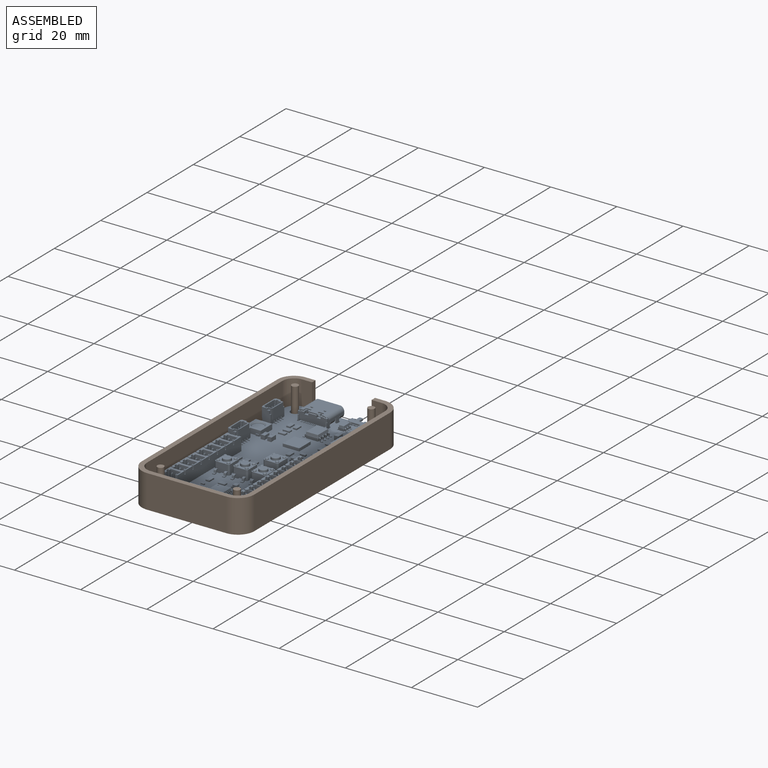
[diagram: assembled view]
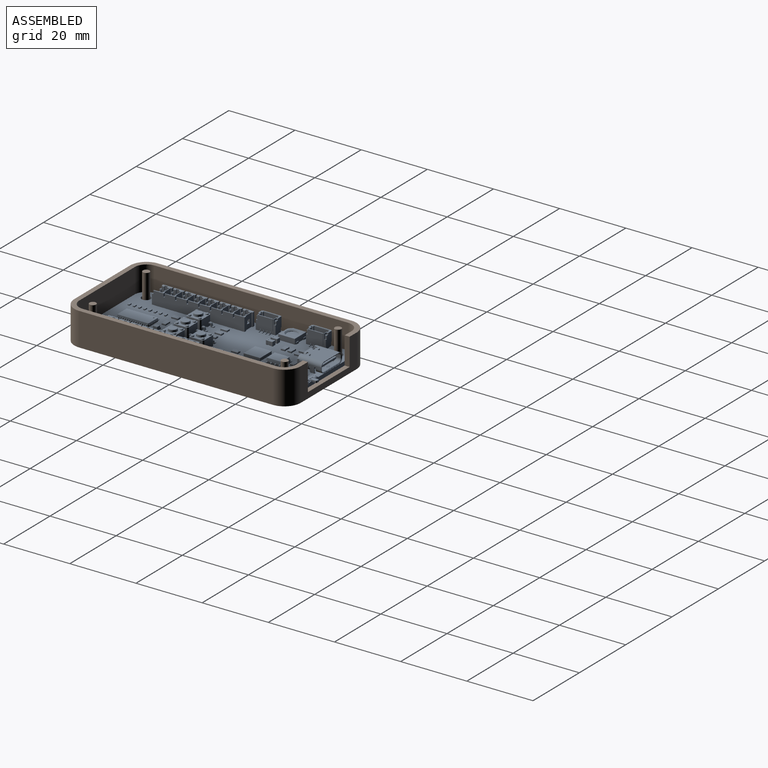
[diagram: assembled view, second angle]
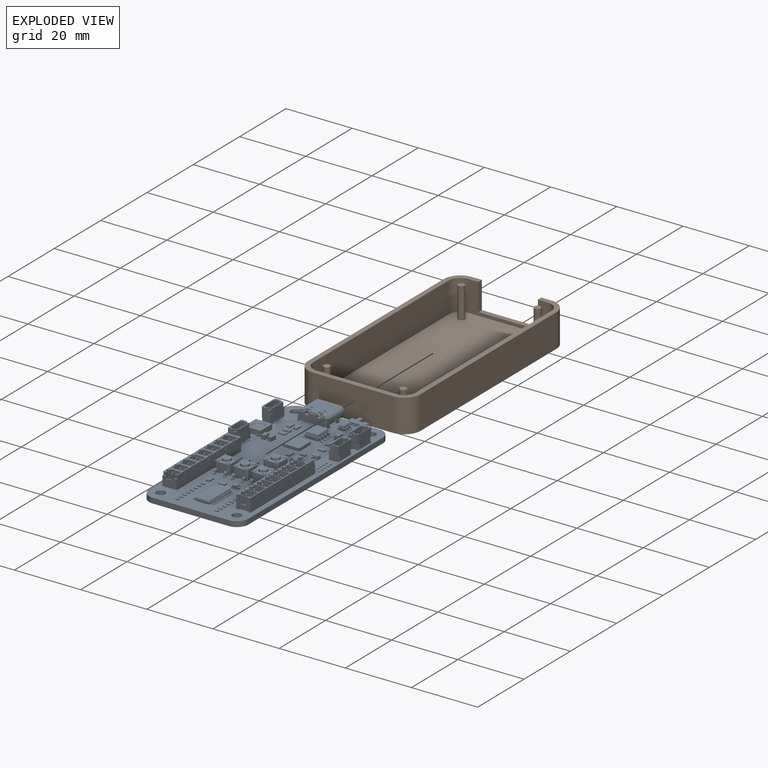
[diagram: exploded view]
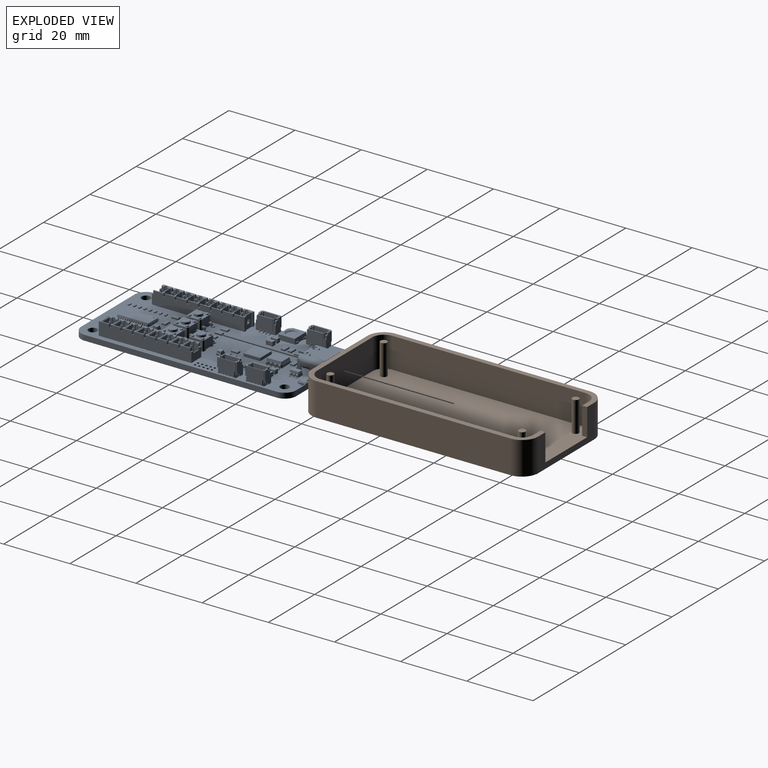
[diagram: exploded view, second angle]
FCSTD DOCUMENT  (FreeCAD 0.20R29177 +426 (Git))
Label: fc_r2
License: All rights reserved
LicenseURL: http://en.wikipedia.org/wiki/All_rights_reserved
objects: Part::Feature×102, App::Link×55, App::Part×17, Sketcher::SketchObject×6, PartDesign::Pad×3, PartDesign::Pocket×2, PartDesign::CoordinateSystem×1, Spreadsheet::Sheet×1, PartDesign::Body×1
note: 120 computed .brp shape members not serialized (recipe doc carries the construction recipe); baked Part::Feature solids carry a one-line shape summary decoded from their .brp

FEATURE [PartDesign::CoordinateSystem] Local_CS_ecaf
  AttacherType = Attacher::AttachEngine3D
  MapMode = 2
  Support = -> [X_Axis001]
FEATURE [Part::Feature] Pcb_ecaf
  shape: bbox 30 x 65 x 1.6 mm, 85 faces (baked)
FEATURE [Sketcher::SketchObject] PCB_Sketch_ecaf
  FullyConstrained = false
  MapMode = 2
  sketch-geometry (9):
    g0: LineSegment StartX=205 StartY=-73.5 StartZ=0 EndX=205 EndY=-131.5 EndZ=0
    g1: LineSegment StartX=178.5 StartY=-135 StartZ=0 EndX=201.5 EndY=-135 EndZ=0
    g2: LineSegment StartX=175 StartY=-73.5 StartZ=0 EndX=175 EndY=-131.5 EndZ=0
    g3: LineSegment StartX=178.5 StartY=-70 StartZ=0 EndX=197 EndY=-70 EndZ=0
    g4: LineSegment StartX=197 StartY=-70 StartZ=0 EndX=201.5 EndY=-70 EndZ=0
    g5: ArcOfCircle CenterX=178.5 CenterY=-131.5 CenterZ=0 NormalX=0 NormalY=0 NormalZ=-1 AngleXU=-1.5708 Radius=3.5 StartAngle=0 EndAngle=1.5708
    g6: ArcOfCircle CenterX=201.5 CenterY=-131.5 CenterZ=0 NormalX=0 NormalY=0 NormalZ=-1 AngleXU=3.14159 Radius=3.5 StartAngle=0 EndAngle=1.5708
    g7: ArcOfCircle CenterX=178.5 CenterY=-73.5 CenterZ=0 NormalX=0 NormalY=0 NormalZ=-1 AngleXU=-2.59331e-07 Radius=3.5 StartAngle=0 EndAngle=1.5708
    g8: ArcOfCircle CenterX=201.5 CenterY=-73.5 CenterZ=0 NormalX=0 NormalY=0 NormalZ=-1 AngleXU=1.5708 Radius=3.5 StartAngle=0 EndAngle=1.5708
  constraints (9):
    c: Coincident(g2,g5)
    c: Coincident(g2,g7)
    c: Coincident(g1,g5)
    c: Coincident(g3,g7)
    c: Coincident(g3,g4)
    c: Coincident(g1,g6)
    c: Coincident(g4,g8)
    c: Coincident(g0,g6)
    c: Coincident(g0,g8)
FEATURE [App::Part] Board_Geoms_ecaf
  Group = -> [Pcb_ecaf,PCB_Sketch_ecaf]
  Origin = -> Origin
FEATURE [Part::Feature] Part__Feature  label="SOLID"
  shape: bbox 4.25 x 5.5 x 5.806 mm, 112 faces (baked)
FEATURE [App::Part] _30480210  label="J15_530480210_eba29879c98""
  Group = -> [Part__Feature]
  Origin = -> Origin008
  Placement = pos=(178.75,-116,3) rot=(1,0,0;1.5708rad)
FEATURE [Part::Feature] Shape  label="BTN3_P:\E-Switch Secure\3D_MODELS_STP_FORMAT\TL3305AFxxxxG.stp_561fbc8f5e7""
  Placement = pos=(195.5,-111.5,0) rot=(0,0,-1;1.5708rad)
  shape: bbox 4.505 x 7.505 x 3.805 mm, 185 faces (baked)
FEATURE [Part::Feature] Shape001  label="AP2112K-3.3V2_SOT_23_5_dac772f8d32""
  Placement = pos=(194.5,-75,0) rot=(0,0,1;3.14159rad)
  shape: bbox 2.8 x 2.9 x 1.55 mm, 109 faces (baked)
FEATURE [Part::Feature] Shape002  label="R31_R_0402_1005Metric_05aedb9767e""
  Placement = pos=(196.225,-123.071,0) rot=(0,0,1;3.14159rad)
  shape: bbox 1 x 0.5 x 0.35 mm, 26 faces (baked)
FEATURE [App::Link] J15_530480210_eba29879c98__ln_  label="J12_530480210_0c2ba19a673""
  LinkPlacement = pos=(178.75,-105.5,3) rot=(1,0,0;1.5708rad)
  LinkedObject = -> _30480210
  Placement = pos=(178.75,-105.5,3) rot=(1,0,0;1.5708rad)
FEATURE [App::Link] J15_530480210_eba29879c98__ln_001  label="J23_530480210_43af08e91fe""
  LinkPlacement = pos=(201.25,-112.5,3) rot=(0,0.707107,0.707107;3.14159rad)
  LinkedObject = -> _30480210
  Placement = pos=(201.25,-112.5,3) rot=(0,0.707107,0.707107;3.14159rad)
FEATURE [Part::Feature] Shape003  label="R3_R_0805_2012Metric_8d72cd1c525""
  Placement = pos=(195,-95.5,0) rot=(0,0,1;0rad)
  shape: bbox 2 x 1.2 x 0.45 mm, 26 faces (baked)
FEATURE [App::Link] R31_R_0402_1005Metric_05aedb9767e__ln_  label="R25_R_0402_1005Metric_978085bccb1""
  LinkPlacement = pos=(196.128,-132.5,0) rot=(0,0,1;3.14159rad)
  LinkedObject = -> Shape002
  Placement = pos=(196.128,-132.5,0) rot=(0,0,1;3.14159rad)
FEATURE [App::Link] R3_R_0805_2012Metric_8d72cd1c525__ln_  label="R17_R_0805_2012Metric_b5a45a613a7""
  LinkPlacement = pos=(183.5,-86,0) rot=(0,0,1;3.14159rad)
  LinkedObject = -> Shape003
  Placement = pos=(183.5,-86,0) rot=(0,0,1;3.14159rad)
FEATURE [App::Link] J15_530480210_eba29879c98__ln_002  label="J14_530480210_c20acc79bf5""
  LinkPlacement = pos=(178.75,-112.5,3) rot=(1,0,0;1.5708rad)
  LinkedObject = -> _30480210
  Placement = pos=(178.75,-112.5,3) rot=(1,0,0;1.5708rad)
FEATURE [App::Link] R31_R_0402_1005Metric_05aedb9767e__ln_001  label="R28_R_0402_1005Metric_2c74dacb2f0""
  LinkPlacement = pos=(196.225,-127.786,0) rot=(0,0,1;3.14159rad)
  LinkedObject = -> Shape002
  Placement = pos=(196.225,-127.786,0) rot=(0,0,1;3.14159rad)
FEATURE [App::Link] R31_R_0402_1005Metric_05aedb9767e__ln_002  label="R9_R_0402_1005Metric_35c67acb1dd""
  LinkPlacement = pos=(184.225,-121.5,0) rot=(0,0,1;0rad)
  LinkedObject = -> Shape002
  Placement = pos=(184.225,-121.5,0) rot=(0,0,1;0rad)
FEATURE [App::Link] J15_530480210_eba29879c98__ln_003  label="J18_530480210_ea0dcacd6fe""
  LinkPlacement = pos=(178.75,-126.5,3) rot=(1,0,0;1.5708rad)
  LinkedObject = -> _30480210
  Placement = pos=(178.75,-126.5,3) rot=(1,0,0;1.5708rad)
FEATURE [App::Link] R31_R_0402_1005Metric_05aedb9767e__ln_003  label="R23_R_0402_1005Metric_96d6f038491""
  LinkPlacement = pos=(184.225,-130.929,0) rot=(0,0,1;0rad)
  LinkedObject = -> Shape002
  Placement = pos=(184.225,-130.929,0) rot=(0,0,1;0rad)
FEATURE [App::Link] R31_R_0402_1005Metric_05aedb9767e__ln_004  label="R20_R_0402_1005Metric_43ccce8d641""
  LinkPlacement = pos=(184.225,-126.214,0) rot=(0,0,1;0rad)
  LinkedObject = -> Shape002
  Placement = pos=(184.225,-126.214,0) rot=(0,0,1;0rad)
FEATURE [App::Link] R3_R_0805_2012Metric_8d72cd1c525__ln_001  label="R1_R_0805_2012Metric_1946942f991""
  LinkPlacement = pos=(182.5,-81.2,0) rot=(0,0,1;1.5708rad)
  LinkedObject = -> Shape003
  Placement = pos=(182.5,-81.2,0) rot=(0,0,1;1.5708rad)
FEATURE [Part::Feature] Shape004  label="C5_C_0805_2012Metric_febcc4c9503""
  Placement = pos=(183.3,-90.5,0) rot=(0,0,1;1.5708rad)
  shape: bbox 1.25 x 2 x 1.25 mm, 28 faces (baked)
FEATURE [App::Link] R31_R_0402_1005Metric_05aedb9767e__ln_005  label="R21_R_0402_1005Metric_75ba3e67f3f""
  LinkPlacement = pos=(184.225,-127.786,0) rot=(0,0,1;0rad)
  LinkedObject = -> Shape002
  Placement = pos=(184.225,-127.786,0) rot=(0,0,1;0rad)
FEATURE [App::Link] J15_530480210_eba29879c98__ln_004  label="J25_530480210_b44d54db2ce""
  LinkPlacement = pos=(201.25,-105.5,3) rot=(0,0.707107,0.707107;3.14159rad)
  LinkedObject = -> _30480210
  Placement = pos=(201.25,-105.5,3) rot=(0,0.707107,0.707107;3.14159rad)
FEATURE [App::Link] R3_R_0805_2012Metric_8d72cd1c525__ln_002  label="R5_R_0805_2012Metric_eb4e9e37ec6""
  LinkPlacement = pos=(196.225,-118.5,0) rot=(0,0,-1;1.5708rad)
  LinkedObject = -> Shape003
  Placement = pos=(196.225,-118.5,0) rot=(0,0,-1;1.5708rad)
FEATURE [Part::Feature] Part__Feature001  label="USB4105GFA_USB4105GFA"
  Placement = pos=(0,0,-1.255) rot=(0,0,1;0rad)
  shape: bbox 0.25 x 0.05 x 2.38 mm, 6 faces (baked)
FEATURE [Part::Feature] Part__Feature002  label="USB4105GFA_USB4105GFA001"
  Placement = pos=(0,0,-1.255) rot=(0,0,1;0rad)
  shape: bbox 0.25 x 0.05 x 2.38 mm, 6 faces (baked)
FEATURE [Part::Feature] Part__Feature003  label="USB4105GFA_USB4105GFA002"
  Placement = pos=(0,0,-1.255) rot=(0,0,1;0rad)
  shape: bbox 0.25 x 0.05 x 1.88 mm, 6 faces (baked)
FEATURE [Part::Feature] Part__Feature004  label="USB4105GFA_USB4105GFA003"
  Placement = pos=(0,0,-1.255) rot=(0,0,1;0rad)
  shape: bbox 0.25 x 0.05 x 1.88 mm, 6 faces (baked)
FEATURE [Part::Feature] Part__Feature005  label="USB4105GFA_USB4105GFA004"
  Placement = pos=(0,0,-1.255) rot=(0,0,1;0rad)
  shape: bbox 0.25 x 0.05 x 1.88 mm, 6 faces (baked)
FEATURE [Part::Feature] Part__Feature006  label="USB4105GFA_USB4105GFA005"
  Placement = pos=(0,0,-1.255) rot=(0,0,1;0rad)
  shape: bbox 0.25 x 0.05 x 1.88 mm, 6 faces (baked)
FEATURE [Part::Feature] Part__Feature007  label="USB4105GFA_USB4105GFA006"
  Placement = pos=(0,0,-1.255) rot=(0,0,1;0rad)
  shape: bbox 0.25 x 0.05 x 1.88 mm, 6 faces (baked)
FEATURE [Part::Feature] Part__Feature008  label="USB4105GFA_USB4105GFA007"
  Placement = pos=(0,0,-1.255) rot=(0,0,1;0rad)
  shape: bbox 0.25 x 0.05 x 1.88 mm, 6 faces (baked)
FEATURE [Part::Feature] Part__Feature009  label="USB4105GFA_USB4105GFA008"
  Placement = pos=(0,0,-1.255) rot=(0,0,1;0rad)
  shape: bbox 0.25 x 0.05 x 1.88 mm, 6 faces (baked)
FEATURE [Part::Feature] Part__Feature010  label="USB4105GFA_USB4105GFA009"
  Placement = pos=(0,0,-1.255) rot=(0,0,1;0rad)
  shape: bbox 0.25 x 0.05 x 1.88 mm, 6 faces (baked)
FEATURE [Part::Feature] Part__Feature011  label="USB4105GFA_USB4105GFA010"
  Placement = pos=(0,0,-1.255) rot=(0,0,1;0rad)
  shape: bbox 0.25 x 0.05 x 2.38 mm, 6 faces (baked)
FEATURE [Part::Feature] Part__Feature012  label="USB4105GFA_USB4105GFA011"
  Placement = pos=(0,0,-1.255) rot=(0,0,1;0rad)
  shape: bbox 0.25 x 0.05 x 2.38 mm, 6 faces (baked)
FEATURE [Part::Feature] Part__Feature013  label="USB4105GFA_USB4105GFA012"
  Placement = pos=(0,0,-1.255) rot=(0,0,1;0rad)
  shape: bbox 0.25 x 0.05 x 2.38 mm, 6 faces (baked)
FEATURE [Part::Feature] Part__Feature014  label="USB4105GFA_USB4105GFA013"
  Placement = pos=(0,0,-1.255) rot=(0,0,1;0rad)
  shape: bbox 0.25 x 0.05 x 1.88 mm, 6 faces (baked)
FEATURE [Part::Feature] Part__Feature015  label="USB4105GFA_USB4105GFA014"
  Placement = pos=(0,0,-1.255) rot=(0,0,1;0rad)
  shape: bbox 0.25 x 0.05 x 1.88 mm, 6 faces (baked)
FEATURE [Part::Feature] Part__Feature016  label="USB4105GFA_USB4105GFA015"
  Placement = pos=(0,0,-1.255) rot=(0,0,1;0rad)
  shape: bbox 0.25 x 0.05 x 2.38 mm, 6 faces (baked)
FEATURE [Part::Feature] Part__Feature017  label="USB4105GFA_USB4105GFA016"
  Placement = pos=(0,0,-1.255) rot=(0,0,1;0rad)
  shape: bbox 0.25 x 0.05 x 1.88 mm, 6 faces (baked)
FEATURE [Part::Feature] Part__Feature018  label="USB4105GFA_USB4105GFA017"
  Placement = pos=(0,0,-1.255) rot=(0,0,1;0rad)
  shape: bbox 0.25 x 0.05 x 1.88 mm, 6 faces (baked)
FEATURE [Part::Feature] Part__Feature019  label="USB4105GFA_USB4105GFA018"
  Placement = pos=(0,0,-1.255) rot=(0,0,1;0rad)
  shape: bbox 0.25 x 0.05 x 1.88 mm, 6 faces (baked)
FEATURE [Part::Feature] Part__Feature020  label="USB4105GFA_USB4105GFA019"
  Placement = pos=(0,0,-1.255) rot=(0,0,1;0rad)
  shape: bbox 0.25 x 0.05 x 1.88 mm, 6 faces (baked)
FEATURE [Part::Feature] Part__Feature021  label="USB4105GFA_USB4105GFA020"
  Placement = pos=(0,0,-1.255) rot=(0,0,1;0rad)
  shape: bbox 0.25 x 0.05 x 2.38 mm, 6 faces (baked)
FEATURE [Part::Feature] Part__Feature022  label="USB4105GFA_USB4105GFA021"
  Placement = pos=(0,0,-1.255) rot=(0,0,1;0rad)
  shape: bbox 0.25 x 0.05 x 1.88 mm, 6 faces (baked)
FEATURE [Part::Feature] Part__Feature023  label="USB4105GFA_USB4105GFA022"
  Placement = pos=(0,0,-1.255) rot=(0,0,1;0rad)
  shape: bbox 0.25 x 0.05 x 1.88 mm, 6 faces (baked)
FEATURE [Part::Feature] Part__Feature024  label="USB4105GFA_USB4105GFA023"
  Placement = pos=(0,0,-1.255) rot=(0,0,1;0rad)
  shape: bbox 0.25 x 0.05 x 2.38 mm, 6 faces (baked)
FEATURE [Part::Feature] Part__Feature025  label="USB4105GFA_USB4105GFA024"
  Placement = pos=(0,0,-1.255) rot=(0,0,1;0rad)
  shape: bbox 0.35 x 0.1 x 1.82 mm, 9 faces (baked)
FEATURE [Part::Feature] Part__Feature026  label="USB4105GFA_USB4105GFA025"
  Placement = pos=(0,0,-1.255) rot=(0,0,1;0rad)
  shape: bbox 0.35 x 0.1 x 1.82 mm, 9 faces (baked)
FEATURE [Part::Feature] Part__Feature027  label="USB4105GFA_USB4105GFA026"
  Placement = pos=(0,0,-1.255) rot=(0,0,1;0rad)
  shape: bbox 0.2 x 0.32 x 0.725 mm, 10 faces (baked)
FEATURE [Part::Feature] Part__Feature028  label="USB4105GFA_USB4105GFA027"
  Placement = pos=(0,0,-1.255) rot=(0,0,1;0rad)
  shape: bbox 0.2 x 0.32 x 0.725 mm, 10 faces (baked)
FEATURE [Part::Feature] Part__Feature029  label="USB4105GFA_USB4105GFA028"
  Placement = pos=(0,0,-1.255) rot=(0,0,1;0rad)
  shape: bbox 0.2 x 0.32 x 0.725 mm, 10 faces (baked)
FEATURE [Part::Feature] Part__Feature030  label="USB4105GFA_USB4105GFA029"
  Placement = pos=(0,0,-1.255) rot=(0,0,1;0rad)
  shape: bbox 0.2 x 0.32 x 0.725 mm, 10 faces (baked)
FEATURE [Part::Feature] Part__Feature031  label="USB4105GFA_USB4105GFA030"
  Placement = pos=(0,0,-1.255) rot=(0,0,1;0rad)
  shape: bbox 0.2 x 0.32 x 0.725 mm, 10 faces (baked)
FEATURE [Part::Feature] Part__Feature032  label="USB4105GFA_USB4105GFA031"
  Placement = pos=(0,0,-1.255) rot=(0,0,1;0rad)
  shape: bbox 0.2 x 0.32 x 0.725 mm, 10 faces (baked)
FEATURE [Part::Feature] Part__Feature033  label="USB4105GFA_USB4105GFA032"
  Placement = pos=(0,0,-1.255) rot=(0,0,1;0rad)
  shape: bbox 0.2 x 0.32 x 0.725 mm, 10 faces (baked)
FEATURE [Part::Feature] Part__Feature034  label="USB4105GFA_USB4105GFA033"
  Placement = pos=(0,0,-1.255) rot=(0,0,1;0rad)
  shape: bbox 0.2 x 0.32 x 0.725 mm, 10 faces (baked)
FEATURE [Part::Feature] Part__Feature035  label="USB4105GFA_USB4105GFA034"
  Placement = pos=(0,0,-1.255) rot=(0,0,1;0rad)
  shape: bbox 0.2 x 0.32 x 0.725 mm, 10 faces (baked)
FEATURE [Part::Feature] Part__Feature036  label="USB4105GFA_USB4105GFA035"
  Placement = pos=(0,0,-1.255) rot=(0,0,1;0rad)
  shape: bbox 0.2 x 0.32 x 0.725 mm, 10 faces (baked)
FEATURE [Part::Feature] Part__Feature037  label="USB4105GFA_USB4105GFA036"
  Placement = pos=(0,0,-1.255) rot=(0,0,1;0rad)
  shape: bbox 0.2 x 0.32 x 0.725 mm, 10 faces (baked)
FEATURE [Part::Feature] Part__Feature038  label="USB4105GFA_USB4105GFA037"
  Placement = pos=(0,0,-1.255) rot=(0,0,1;0rad)
  shape: bbox 0.2 x 0.32 x 0.725 mm, 10 faces (baked)
FEATURE [Part::Feature] Part__Feature039  label="USB4105GFA_USB4105GFA038"
  Placement = pos=(0,0,-1.255) rot=(0,0,1;0rad)
  shape: bbox 0.2 x 0.32 x 0.725 mm, 10 faces (baked)
FEATURE [Part::Feature] Part__Feature040  label="USB4105GFA_USB4105GFA039"
  Placement = pos=(0,0,-1.255) rot=(0,0,1;0rad)
  shape: bbox 0.2 x 0.32 x 0.725 mm, 10 faces (baked)
FEATURE [Part::Feature] Part__Feature041  label="USB4105GFA_USB4105GFA040"
  Placement = pos=(0,0,-1.255) rot=(0,0,1;0rad)
  shape: bbox 0.2 x 0.32 x 0.725 mm, 10 faces (baked)
FEATURE [Part::Feature] Part__Feature042  label="USB4105GFA_USB4105GFA041"
  Placement = pos=(0,0,-1.255) rot=(0,0,1;0rad)
  shape: bbox 0.2 x 0.32 x 0.725 mm, 10 faces (baked)
FEATURE [Part::Feature] Part__Feature043  label="USB4105GFA_USB4105GFA042"
  Placement = pos=(0,0,-1.255) rot=(0,0,1;0rad)
  shape: bbox 8.94 x 4.41 x 7.33 mm, 421 faces (baked)
FEATURE [Part::Feature] Part__Feature044  label="USB4105GFA_USB4105GFA043"
  Placement = pos=(0,0,-1.255) rot=(0,0,1;0rad)
  shape: bbox 8.89 x 3.61 x 6.57 mm, 162 faces (baked)
FEATURE [App::Part] USB4105GFA_USB4105GFA  label="USB4105GFA_USB4105GFA044"
  Group = -> [Part__Feature001,Part__Feature002,Part__Feature003,Part__Feature004,Part__Feature005,Part__Feature006,Part__Feature007,Part__Feature008,Part__Feature009,Part__Feature010,Part__Feature011,Part__Feature012,Part__Feature013,Part__Feature014,Part__Feature015,Part__Feature016,Part__Feature017,Part__Feature018,Part__Feature019,Part__Feature020,Part__Feature021,Part__Feature022,Part__Feature023,+21 more]
  Origin = -> Origin009
FEATURE [App::Part] USB4105GFA  label="J1_USB4105GFA_8c9771e9b48""
  Group = -> [USB4105GFA_USB4105GFA]
  Origin = -> Origin010
  Placement = pos=(186.355,-72.5,0) rot=(0,0.707107,0.707107;3.14159rad)
FEATURE [App::Link] J15_530480210_eba29879c98__ln_005  label="J26_530480210_0dc223683e1""
  LinkPlacement = pos=(201.25,-102,3) rot=(0,0.707107,0.707107;3.14159rad)
  LinkedObject = -> _30480210
  Placement = pos=(201.25,-102,3) rot=(0,0.707107,0.707107;3.14159rad)
FEATURE [App::Link] R3_R_0805_2012Metric_8d72cd1c525__ln_003  label="R2_R_0805_2012Metric_a13dcf4894d""
  LinkPlacement = pos=(184.225,-118.5,0) rot=(0,0,-1;1.5708rad)
  LinkedObject = -> Shape003
  Placement = pos=(184.225,-118.5,0) rot=(0,0,-1;1.5708rad)
FEATURE [App::Link] R3_R_0805_2012Metric_8d72cd1c525__ln_004  label="R11_R_0805_2012Metric_68373026d7d""
  LinkPlacement = pos=(185.5,-104.5,0) rot=(0,0,1;1.5708rad)
  LinkedObject = -> Shape003
  Placement = pos=(185.5,-104.5,0) rot=(0,0,1;1.5708rad)
FEATURE [App::Link] R31_R_0402_1005Metric_05aedb9767e__ln_006  label="R32_R_0402_1005Metric_2e0dea6faa5""
  LinkPlacement = pos=(196.225,-121.5,0) rot=(0,0,1;3.14159rad)
  LinkedObject = -> Shape002
  Placement = pos=(196.225,-121.5,0) rot=(0,0,1;3.14159rad)
FEATURE [App::Link] J15_530480210_eba29879c98__ln_006  label="J16_530480210_f79377288be""
  LinkPlacement = pos=(178.75,-119.5,3) rot=(1,0,0;1.5708rad)
  LinkedObject = -> _30480210
  Placement = pos=(178.75,-119.5,3) rot=(1,0,0;1.5708rad)
FEATURE [App::Link] BTN3_P__E_Switch_Secure_3D_MODELS_STP_FORMAT_TL3305AFxxxxG_stp_561fbc8f5e7__ln_  label="BTN2_P:\E-Switch Secure\3D_MODELS_STP_FORMAT\TL3305AFxxxxG.stp_e0b9e0507f5""
  LinkPlacement = pos=(190,-111.5,0) rot=(0,0,-1;1.5708rad)
  LinkedObject = -> Shape
  Placement = pos=(190,-111.5,0) rot=(0,0,-1;1.5708rad)
FEATURE [Part::Feature] Part__Feature045  label="APHB1608LZGKSURKC_APHB1608LZGKSURKC"
  Placement = pos=(0,0,0) rot=(0,1,0;1.5708rad)
  shape: bbox 0.4 x 0.15 x 0.3 mm, 7 faces (baked)
FEATURE [Part::Feature] Part__Feature046  label="APHB1608LZGKSURKC_APHB1608LZGKSURKC001"
  Placement = pos=(0,0,0) rot=(0,1,0;1.5708rad)
  shape: bbox 0.4 x 0.15 x 0.3 mm, 7 faces (baked)
FEATURE [Part::Feature] Part__Feature047  label="APHB1608LZGKSURKC_APHB1608LZGKSURKC002"
  Placement = pos=(0,0,0) rot=(0,1,0;1.5708rad)
  shape: bbox 0.4 x 0.15 x 0.3 mm, 7 faces (baked)
FEATURE [Part::Feature] Part__Feature048  label="APHB1608LZGKSURKC_APHB1608LZGKSURKC003"
  Placement = pos=(0,0,0) rot=(0,1,0;1.5708rad)
  shape: bbox 0.4 x 0.15 x 0.3 mm, 7 faces (baked)
FEATURE [Part::Feature] Part__Feature049  label="APHB1608LZGKSURKC_APHB1608LZGKSURKC004"
  Placement = pos=(0,0,0) rot=(0,1,0;1.5708rad)
  shape: bbox 0.15 x 0.15 x 0.15 mm, 5 faces (baked)
FEATURE [Part::Feature] Part__Feature050  label="APHB1608LZGKSURKC_APHB1608LZGKSURKC005"
  Placement = pos=(0,0,0) rot=(0,1,0;1.5708rad)
  shape: bbox 0.15 x 0.15 x 0.15 mm, 5 faces (baked)
FEATURE [Part::Feature] Part__Feature051  label="APHB1608LZGKSURKC_APHB1608LZGKSURKC006"
  Placement = pos=(0,0,0) rot=(0,1,0;1.5708rad)
  shape: bbox 0.15 x 0.15 x 0.15 mm, 5 faces (baked)
FEATURE [Part::Feature] Part__Feature052  label="APHB1608LZGKSURKC_APHB1608LZGKSURKC007"
  Placement = pos=(0,0,0) rot=(0,1,0;1.5708rad)
  shape: bbox 0.15 x 0.15 x 0.15 mm, 5 faces (baked)
FEATURE [Part::Feature] Part__Feature053  label="APHB1608LZGKSURKC_APHB1608LZGKSURKC008"
  Placement = pos=(0,0,0) rot=(0,1,0;1.5708rad)
  shape: bbox 1.6 x 0.35 x 0.8 mm, 6 faces (baked)
FEATURE [Part::Feature] Part__Feature054  label="APHB1608LZGKSURKC_APHB1608LZGKSURKC009"
  Placement = pos=(0,0,0) rot=(0,1,0;1.5708rad)
  shape: bbox 1.6 x 0.15 x 0.8 mm, 23 faces (baked)
FEATURE [Part::Feature] Part__Feature055  label="APHB1608LZGKSURKC_APHB1608LZGKSURKC010"
  Placement = pos=(0,0,0) rot=(0,1,0;1.5708rad)
  shape: bbox 0.4 x 0.1 x 0.796 mm, 10 faces (baked)
FEATURE [App::Part] APHB1608LZGKSURKC_APHB1608LZGKSURKC  label="APHB1608LZGKSURKC_APHB1608LZGKSURKC011"
  Group = -> [Part__Feature045,Part__Feature046,Part__Feature047,Part__Feature048,Part__Feature049,Part__Feature050,Part__Feature051,Part__Feature052,Part__Feature053,Part__Feature054,Part__Feature055]
  Origin = -> Origin011
FEATURE [App::Part] APHB1608LZGKSURKC  label="D6_APHB1608LZGKSURKC_2d79be0c02d""
  Group = -> [APHB1608LZGKSURKC_APHB1608LZGKSURKC]
  Origin = -> Origin012
  Placement = pos=(194.975,-93.5,0) rot=(1,0,0;1.5708rad)
FEATURE [App::Link] C5_C_0805_2012Metric_febcc4c9503__ln_  label="C6_C_0805_2012Metric_464f59ece5b""
  LinkPlacement = pos=(181.3,-90.5,0) rot=(0,0,-1;1.5708rad)
  LinkedObject = -> Shape004
  Placement = pos=(181.3,-90.5,0) rot=(0,0,-1;1.5708rad)
FEATURE [App::Link] R31_R_0402_1005Metric_05aedb9767e__ln_007  label="R29_R_0402_1005Metric_32d439146da""
  LinkPlacement = pos=(196.225,-126.214,0) rot=(0,0,1;3.14159rad)
  LinkedObject = -> Shape002
  Placement = pos=(196.225,-126.214,0) rot=(0,0,1;3.14159rad)
FEATURE [App::Link] R3_R_0805_2012Metric_8d72cd1c525__ln_005  label="R15_R_0805_2012Metric_2045c3087e7""
  LinkPlacement = pos=(184.5,-81.2,0) rot=(0,0,-1;1.5708rad)
  LinkedObject = -> Shape003
  Placement = pos=(184.5,-81.2,0) rot=(0,0,-1;1.5708rad)
FEATURE [Part::Feature] Shape005  label="U3_QFN_32_1EP_5x5mm_P05mm_EP33x33mm_5e3dba8b24a""
  Placement = pos=(190.25,-89.5625,0) rot=(0,0,1;1.5708rad)
  shape: bbox 5 x 5 x 0.875 mm, 206 faces (baked)
FEATURE [App::Link] R31_R_0402_1005Metric_05aedb9767e__ln_008  label="R27_R_0402_1005Metric_b2657f9fb6a""
  LinkPlacement = pos=(196.225,-129.357,0) rot=(0,0,1;3.14159rad)
  LinkedObject = -> Shape002
  Placement = pos=(196.225,-129.357,0) rot=(0,0,1;3.14159rad)
FEATURE [App::Link] R3_R_0805_2012Metric_8d72cd1c525__ln_006  label="R19_R_0805_2012Metric_b859e94313a""
  LinkPlacement = pos=(196.5,-84.5,0) rot=(0,0,1;1.5708rad)
  LinkedObject = -> Shape003
  Placement = pos=(196.5,-84.5,0) rot=(0,0,1;1.5708rad)
FEATURE [App::Link] R31_R_0402_1005Metric_05aedb9767e__ln_009  label="R26_R_0402_1005Metric_d4dea5bbcb8""
  LinkPlacement = pos=(196.128,-130.929,0) rot=(0,0,1;3.14159rad)
  LinkedObject = -> Shape002
  Placement = pos=(196.128,-130.929,0) rot=(0,0,1;3.14159rad)
FEATURE [Part::Feature] Part__Feature056  label="4328"
  shape: bbox 0.15 x 2.2 x 0.3 mm, 10 faces (baked)
FEATURE [Part::Feature] Part__Feature057  label="4328001"
  shape: bbox 0.15 x 0.7 x 3.6 mm, 12 faces (baked)
FEATURE [Part::Feature] Part__Feature058  label="4328002"
  shape: bbox 0.15 x 2.2 x 0.3 mm, 10 faces (baked)
FEATURE [Part::Feature] Part__Feature059  label="4328003"
  shape: bbox 6 x 4.25 x 2.9 mm, 125 faces (baked)
FEATURE [Part::Feature] Part__Feature060  label="4328004"
  shape: bbox 0.15 x 0.1 x 0.3 mm, 6 faces (baked)
FEATURE [Part::Feature] Part__Feature061  label="4328005"
  shape: bbox 0.15 x 0.7 x 3.6 mm, 12 faces (baked)
FEATURE [Part::Feature] Part__Feature062  label="4328006"
  shape: bbox 0.2 x 1.3 x 1.5 mm, 23 faces (baked)
FEATURE [Part::Feature] Part__Feature063  label="4328007"
  shape: bbox 0.15 x 2.2 x 0.3 mm, 10 faces (baked)
FEATURE [Part::Feature] Part__Feature064  label="4328008"
  shape: bbox 0.15 x 0.1 x 0.3 mm, 6 faces (baked)
FEATURE [Part::Feature] Part__Feature065  label="4328009"
  shape: bbox 0.15 x 0.1 x 0.3 mm, 6 faces (baked)
FEATURE [Part::Feature] Part__Feature066  label="4328010"
  shape: bbox 0.15 x 0.7 x 3.6 mm, 12 faces (baked)
FEATURE [Part::Feature] Part__Feature067  label="4328011"
  shape: bbox 0.15 x 0.1 x 0.3 mm, 6 faces (baked)
FEATURE [Part::Feature] Part__Feature068  label="4328012"
  shape: bbox 0.15 x 0.7 x 3.6 mm, 12 faces (baked)
FEATURE [Part::Feature] Part__Feature069  label="4328013"
  shape: bbox 0.2 x 1.3 x 1.5 mm, 23 faces (baked)
FEATURE [Part::Feature] Part__Feature070  label="4328014"
  shape: bbox 0.15 x 2.2 x 0.3 mm, 10 faces (baked)
FEATURE [App::Part] _328  label="J3_4328015_ddb25768c42""
  Group = -> [Part__Feature056,Part__Feature057,Part__Feature058,Part__Feature059,Part__Feature060,Part__Feature061,Part__Feature062,Part__Feature063,Part__Feature064,Part__Feature065,Part__Feature066,Part__Feature067,Part__Feature068,Part__Feature069,Part__Feature070]
  Origin = -> Origin013
  Placement = pos=(203,-89,0) rot=(0.57735,-0.57735,-0.57735;2.0944rad)
FEATURE [Part::Feature] Part__Feature071  label="729b0bae-9266-11ed-9e62-a0cec80452fd_part"
  shape: bbox 3.9 x 4.905 x 1.75 mm, 84 faces (baked)
FEATURE [App::Part] _29b0bae_9266_11ed_9e62_a0cec80452fd  label="729b0bae-9266-11ed-9e62-a0cec80452fd"
  Group = -> [Part__Feature071]
  Origin = -> Origin014
FEATURE [Part::Feature] Part__Feature072  label="729b0e92-9266-11ed-9e62-a0cec80452fd_part"
  shape: bbox 1.198 x 0.41 x 1.07 mm, 14 faces (baked)
FEATURE [Part::Feature] Part__Feature073  label="729b0e92-9266-11ed-9e62-a0cec80452fd_part001"
  shape: bbox 1.198 x 0.41 x 1.07 mm, 14 faces (baked)
FEATURE [Part::Feature] Part__Feature074  label="729b0e92-9266-11ed-9e62-a0cec80452fd_part002"
  shape: bbox 1.198 x 0.41 x 1.07 mm, 14 faces (baked)
FEATURE [Part::Feature] Part__Feature075  label="729b0e92-9266-11ed-9e62-a0cec80452fd_part003"
  shape: bbox 1.198 x 0.41 x 1.07 mm, 14 faces (baked)
FEATURE [Part::Feature] Part__Feature076  label="729b0e92-9266-11ed-9e62-a0cec80452fd_part004"
  shape: bbox 1.198 x 0.41 x 1.07 mm, 14 faces (baked)
FEATURE [Part::Feature] Part__Feature077  label="729b0e92-9266-11ed-9e62-a0cec80452fd_part005"
  shape: bbox 1.198 x 0.41 x 1.07 mm, 14 faces (baked)
FEATURE [Part::Feature] Part__Feature078  label="729b0e92-9266-11ed-9e62-a0cec80452fd_part006"
  shape: bbox 1.198 x 0.41 x 1.07 mm, 14 faces (baked)
FEATURE [Part::Feature] Part__Feature079  label="729b0e92-9266-11ed-9e62-a0cec80452fd_part007"
  shape: bbox 1.198 x 0.41 x 1.07 mm, 14 faces (baked)
FEATURE [App::Part] _29b0e92_9266_11ed_9e62_a0cec80452fd_part  label="729b0e92-9266-11ed-9e62-a0cec80452fd_part008"
  Group = -> [Part__Feature072,Part__Feature073,Part__Feature074,Part__Feature075,Part__Feature076,Part__Feature077,Part__Feature078,Part__Feature079]
  Origin = -> Origin015
FEATURE [App::Part] _29b0e92_9266_11ed_9e62_a0cec80452fd  label="729b0e92-9266-11ed-9e62-a0cec80452fd"
  Group = -> [_29b0e92_9266_11ed_9e62_a0cec80452fd_part]
  Origin = -> Origin016
FEATURE [Part::Feature] Part__Feature080  label="729b1108-9266-11ed-9e62-a0cec80452fd_part"
  shape: bbox 0.4 x 0.4 x 0.05 mm, 3 faces (baked)
FEATURE [App::Part] _29b1108_9266_11ed_9e62_a0cec80452fd  label="729b1108-9266-11ed-9e62-a0cec80452fd"
  Group = -> [Part__Feature080]
  Origin = -> Origin017
FEATURE [App::Part] _29b06ae_9266_11ed_9e62_a0cec80452fd  label="729b06ae-9266-11ed-9e62-a0cec80452fd"
  Group = -> [_29b0bae_9266_11ed_9e62_a0cec80452fd,_29b0e92_9266_11ed_9e62_a0cec80452fd,_29b1108_9266_11ed_9e62_a0cec80452fd]
  Origin = -> Origin018
FEATURE [App::Part] CQ_assembly  label="U5_CQ assembly_c1ff1356c96""
  Group = -> [_29b06ae_9266_11ed_9e62_a0cec80452fd]
  Origin = -> Origin019
  Placement = pos=(191.5,-82.5,0) rot=(0,0,1;3.14159rad)
FEATURE [App::Link] J15_530480210_eba29879c98__ln_007  label="J20_530480210_a2b915e6096""
  LinkPlacement = pos=(201.25,-123,3) rot=(0,0.707107,0.707107;3.14159rad)
  LinkedObject = -> _30480210
  Placement = pos=(201.25,-123,3) rot=(0,0.707107,0.707107;3.14159rad)
FEATURE [App::Link] J3_4328015_ddb25768c42__ln_  label="J10_4328015_7ff0f795162""
  LinkPlacement = pos=(176.725,-80.5,0) rot=(0.57735,0.57735,0.57735;2.0944rad)
  LinkedObject = -> _328
  Placement = pos=(176.725,-80.5,0) rot=(0.57735,0.57735,0.57735;2.0944rad)
FEATURE [App::Link] C5_C_0805_2012Metric_febcc4c9503__ln_001  label="C3_C_0805_2012Metric_948c026d24f""
  LinkPlacement = pos=(198.5,-80.5,0) rot=(0,0,-1;1.5708rad)
  LinkedObject = -> Shape004
  Placement = pos=(198.5,-80.5,0) rot=(0,0,-1;1.5708rad)
FEATURE [App::Link] J3_4328015_ddb25768c42__ln_001  label="J2_4328015_5f22bbe0af1""
  LinkPlacement = pos=(203,-80.5,0) rot=(0.57735,-0.57735,-0.57735;2.0944rad)
  LinkedObject = -> _328
  Placement = pos=(203,-80.5,0) rot=(0.57735,-0.57735,-0.57735;2.0944rad)
FEATURE [App::Link] R31_R_0402_1005Metric_05aedb9767e__ln_010  label="R10_R_0402_1005Metric_4869f4c0b29""
  LinkPlacement = pos=(184.225,-123.071,0) rot=(0,0,1;0rad)
  LinkedObject = -> Shape002
  Placement = pos=(184.225,-123.071,0) rot=(0,0,1;0rad)
FEATURE [App::Link] R3_R_0805_2012Metric_8d72cd1c525__ln_007  label="R13_R_0805_2012Metric_0160fac3375""
  LinkPlacement = pos=(183.5,-84,0) rot=(0,0,1;3.14159rad)
  LinkedObject = -> Shape003
  Placement = pos=(183.5,-84,0) rot=(0,0,1;3.14159rad)
FEATURE [App::Link] R3_R_0805_2012Metric_8d72cd1c525__ln_008  label="R16_R_0805_2012Metric_9f33b905af8""
  LinkPlacement = pos=(197.2,-88.5,0) rot=(0,0,1;3.14159rad)
  LinkedObject = -> Shape003
  Placement = pos=(197.2,-88.5,0) rot=(0,0,1;3.14159rad)
FEATURE [App::Link] J15_530480210_eba29879c98__ln_008  label="J13_530480210_56933f0e703""
  LinkPlacement = pos=(178.75,-109,3) rot=(1,0,0;1.5708rad)
  LinkedObject = -> _30480210
  Placement = pos=(178.75,-109,3) rot=(1,0,0;1.5708rad)
FEATURE [Part::Feature] Shape006  label="U2_TSSOP_28_44x97mm_P065mm_7504b019951""
  Placement = pos=(190.363,-125.775,0) rot=(0,0,1;0rad)
  shape: bbox 6.4 x 9.7 x 1.1 mm, 456 faces (baked)
FEATURE [Part::Feature] Shape007  label="D2_LED_0805_2012Metric_617619232d8""
  Placement = pos=(192.27,-118.725,0) rot=(0,0,1;0rad)
  shape: bbox 2 x 1.25 x 1.1 mm, 50 faces (baked)
FEATURE [App::Link] BTN3_P__E_Switch_Secure_3D_MODELS_STP_FORMAT_TL3305AFxxxxG_stp_561fbc8f5e7__ln_001  label="RESET_P:\E-Switch Secure\3D_MODELS_STP_FORMAT\TL3305AFxxxxG.stp_b94cc1d66f6""
  LinkPlacement = pos=(193.975,-104,0) rot=(0,0,1;3.14159rad)
  LinkedObject = -> Shape
  Placement = pos=(193.975,-104,0) rot=(0,0,1;3.14159rad)
FEATURE [App::Link] R31_R_0402_1005Metric_05aedb9767e__ln_011  label="R18_R_0402_1005Metric_19e97eaa38b""
  LinkPlacement = pos=(184.225,-124.643,0) rot=(0,0,1;0rad)
  LinkedObject = -> Shape002
  Placement = pos=(184.225,-124.643,0) rot=(0,0,1;0rad)
FEATURE [App::Link] R3_R_0805_2012Metric_8d72cd1c525__ln_009  label="R6_R_0805_2012Metric_322051c1cd9""
  LinkPlacement = pos=(198.5,-84.5,0) rot=(0,0,1;1.5708rad)
  LinkedObject = -> Shape003
  Placement = pos=(198.5,-84.5,0) rot=(0,0,1;1.5708rad)
FEATURE [App::Link] J15_530480210_eba29879c98__ln_009  label="J19_530480210_0d22967ee7f""
  LinkPlacement = pos=(201.25,-126.5,3) rot=(0,0.707107,0.707107;3.14159rad)
  LinkedObject = -> _30480210
  Placement = pos=(201.25,-126.5,3) rot=(0,0.707107,0.707107;3.14159rad)
FEATURE [App::Link] R31_R_0402_1005Metric_05aedb9767e__ln_012  label="R22_R_0402_1005Metric_086bd447089""
  LinkPlacement = pos=(184.225,-129.357,0) rot=(0,0,1;0rad)
  LinkedObject = -> Shape002
  Placement = pos=(184.225,-129.357,0) rot=(0,0,1;0rad)
FEATURE [Part::Feature] Shape008  label="D1_LED_SK6812_PLCC4_50x50mm_P32mm_89bfcf99303""
  Placement = pos=(177.5,-88,0) rot=(0,0,-1;1.5708rad)
  shape: bbox 5 x 5.4 x 1.7 mm, 68 faces (baked)
FEATURE [App::Link] D2_LED_0805_2012Metric_617619232d8__ln_  label="D5_LED_0805_2012Metric_c958006749c""
  LinkPlacement = pos=(195,-97.5,0) rot=(0,0,1;3.14159rad)
  LinkedObject = -> Shape007
  Placement = pos=(195,-97.5,0) rot=(0,0,1;3.14159rad)
FEATURE [App::Link] R3_R_0805_2012Metric_8d72cd1c525__ln_010  label="R12_R_0805_2012Metric_7f7e8806ade""
  LinkPlacement = pos=(188,-104.5,0) rot=(0,0,1;1.5708rad)
  LinkedObject = -> Shape003
  Placement = pos=(188,-104.5,0) rot=(0,0,1;1.5708rad)
FEATURE [App::Link] R3_R_0805_2012Metric_8d72cd1c525__ln_011  label="R8_R_0805_2012Metric_1fa6d87f679""
  LinkPlacement = pos=(188.225,-118.725,0) rot=(0,0,1;3.14159rad)
  LinkedObject = -> Shape003
  Placement = pos=(188.225,-118.725,0) rot=(0,0,1;3.14159rad)
FEATURE [App::Link] R31_R_0402_1005Metric_05aedb9767e__ln_013  label="R24_R_0402_1005Metric_2800a74619b""
  LinkPlacement = pos=(184.225,-132.5,0) rot=(0,0,1;0rad)
  LinkedObject = -> Shape002
  Placement = pos=(184.225,-132.5,0) rot=(0,0,1;0rad)
FEATURE [App::Link] J3_4328015_ddb25768c42__ln_002  label="J7_4328015_386b064daf5""
  LinkPlacement = pos=(177,-95.5,0) rot=(0.57735,0.57735,0.57735;2.0944rad)
  LinkedObject = -> _328
  Placement = pos=(177,-95.5,0) rot=(0.57735,0.57735,0.57735;2.0944rad)
FEATURE [App::Link] J15_530480210_eba29879c98__ln_010  label="J11_530480210_72323117d84""
  LinkPlacement = pos=(178.75,-102,3) rot=(1,0,0;1.5708rad)
  LinkedObject = -> _30480210
  Placement = pos=(178.75,-102,3) rot=(1,0,0;1.5708rad)
FEATURE [App::Link] C5_C_0805_2012Metric_febcc4c9503__ln_002  label="C4_C_0805_2012Metric_3f2d9b8291f""
  LinkPlacement = pos=(196.5,-80.5,0) rot=(0,0,-1;1.5708rad)
  LinkedObject = -> Shape004
  Placement = pos=(196.5,-80.5,0) rot=(0,0,-1;1.5708rad)
FEATURE [Part::Feature] Shape009  label="U1_SOT_353_SC_70_5_e2bbc67c9be""
  Placement = pos=(198.5,-93,0) rot=(0,0,-1;1.5708rad)
  shape: bbox 2 x 2 x 1.05 mm, 104 faces (baked)
FEATURE [Part::Feature] Part__Feature081  label="SSAJ110100"
  shape: bbox 1.2 x 0.6 x 1.935 mm, 16 faces (baked)
FEATURE [Part::Feature] Part__Feature082  label="SSAJ110101"
  shape: bbox 6.5 x 0.7 x 2.5 mm, 205 faces (baked)
FEATURE [Part::Feature] Part__Feature083  label="SSAJ110102"
  shape: bbox 0.4 x 0.35 x 0.1799 mm, 10 faces (baked)
FEATURE [Part::Feature] Part__Feature084  label="SSAJ110103"
  shape: bbox 0.4 x 0.35 x 0.1799 mm, 10 faces (baked)
FEATURE [Part::Feature] Part__Feature085  label="SSAJ110104"
  shape: bbox 0.4 x 0.35 x 0.1799 mm, 10 faces (baked)
FEATURE [Part::Feature] Part__Feature086  label="SSAJ110105"
  shape: bbox 0.275 x 0.045 x 0.05 mm, 6 faces (baked)
FEATURE [Part::Feature] Part__Feature087  label="SSAJ110106"
  shape: bbox 0.275 x 0.045 x 0.05 mm, 6 faces (baked)
FEATURE [Part::Feature] Part__Feature088  label="SSAJ110107"
  shape: bbox 0.275 x 0.045 x 0.05 mm, 6 faces (baked)
FEATURE [Part::Feature] Part__Feature089  label="SSAJ110108"
  shape: bbox 5.5 x 1.1 x 2.5 mm, 96 faces (baked)
FEATURE [Part::Feature] Part__Feature090  label="SSAJ110109"
  shape: bbox 0.9441 x 0.05 x 0.355 mm, 12 faces (baked)
FEATURE [App::Part] SSAJ110100  label="S2_SSAJ110110_94bf4a2374a""
  Group = -> [Part__Feature081,Part__Feature082,Part__Feature083,Part__Feature084,Part__Feature085,Part__Feature086,Part__Feature087,Part__Feature088,Part__Feature089,Part__Feature090]
  Origin = -> Origin020
  Placement = pos=(195.5,-70.72,0) rot=(0,0.707107,0.707107;3.14159rad)
FEATURE [App::Link] J15_530480210_eba29879c98__ln_011  label="J21_530480210_3ca28972e12""
  LinkPlacement = pos=(201.25,-119.5,3) rot=(0,0.707107,0.707107;3.14159rad)
  LinkedObject = -> _30480210
  Placement = pos=(201.25,-119.5,3) rot=(0,0.707107,0.707107;3.14159rad)
FEATURE [App::Link] J15_530480210_eba29879c98__ln_012  label="J24_530480210_d5664d251e9""
  LinkPlacement = pos=(201.25,-109,3) rot=(0,0.707107,0.707107;3.14159rad)
  LinkedObject = -> _30480210
  Placement = pos=(201.25,-109,3) rot=(0,0.707107,0.707107;3.14159rad)
FEATURE [App::Link] R3_R_0805_2012Metric_8d72cd1c525__ln_012  label="R7_R_0805_2012Metric_f3b1fd9ed19""
  LinkPlacement = pos=(183,-104.5,0) rot=(0,0,1;1.5708rad)
  LinkedObject = -> Shape003
  Placement = pos=(183,-104.5,0) rot=(0,0,1;1.5708rad)
FEATURE [App::Link] J15_530480210_eba29879c98__ln_013  label="J22_530480210_ab6988eedfa""
  LinkPlacement = pos=(201.25,-116,3) rot=(0,0.707107,0.707107;3.14159rad)
  LinkedObject = -> _30480210
  Placement = pos=(201.25,-116,3) rot=(0,0.707107,0.707107;3.14159rad)
FEATURE [App::Link] R31_R_0402_1005Metric_05aedb9767e__ln_014  label="R30_R_0402_1005Metric_b8b4026dcdc""
  LinkPlacement = pos=(196.225,-124.643,0) rot=(0,0,1;3.14159rad)
  LinkedObject = -> Shape002
  Placement = pos=(196.225,-124.643,0) rot=(0,0,1;3.14159rad)
FEATURE [App::Link] R3_R_0805_2012Metric_8d72cd1c525__ln_013  label="R14_R_0805_2012Metric_364e65e614b""
  LinkPlacement = pos=(192,-95,0) rot=(0,0,1;1.5708rad)
  LinkedObject = -> Shape003
  Placement = pos=(192,-95,0) rot=(0,0,1;1.5708rad)
FEATURE [App::Link] J15_530480210_eba29879c98__ln_014  label="J17_530480210_1697216bf9c""
  LinkPlacement = pos=(178.75,-123,3) rot=(1,0,0;1.5708rad)
  LinkedObject = -> _30480210
  Placement = pos=(178.75,-123,3) rot=(1,0,0;1.5708rad)
FEATURE [App::Link] R3_R_0805_2012Metric_8d72cd1c525__ln_014  label="R4_R_0805_2012Metric_03a2e8e0d08""
  LinkPlacement = pos=(189.5,-79,0) rot=(0,0,1;3.14159rad)
  LinkedObject = -> Shape003
  Placement = pos=(189.5,-79,0) rot=(0,0,1;3.14159rad)
FEATURE [App::Link] BTN3_P__E_Switch_Secure_3D_MODELS_STP_FORMAT_TL3305AFxxxxG_stp_561fbc8f5e7__ln_002  label="BTN1_P:\E-Switch Secure\3D_MODELS_STP_FORMAT\TL3305AFxxxxG.stp_c1415e18403""
  LinkPlacement = pos=(184.5,-111.5,0) rot=(0,0,-1;1.5708rad)
  LinkedObject = -> Shape
  Placement = pos=(184.5,-111.5,0) rot=(0,0,-1;1.5708rad)
FEATURE [App::Part] Top_ecaf
  Group = -> [_30480210,Shape,Shape001,Shape002,J15_530480210_eba29879c98__ln_,J15_530480210_eba29879c98__ln_001,Shape003,R31_R_0402_1005Metric_05aedb9767e__ln_,R3_R_0805_2012Metric_8d72cd1c525__ln_,J15_530480210_eba29879c98__ln_002,R31_R_0402_1005Metric_05aedb9767e__ln_001,R31_R_0402_1005Metric_05aedb9767e__ln_002,J15_530480210_eba29879c98__ln_003,R31_R_0402_1005Metric_05aedb9767e__ln_003,+57 more]
  Origin = -> Origin003
FEATURE [App::Part] Step_Models_ecaf
  Group = -> [Top_ecaf]
  Origin = -> Origin002
FEATURE [App::Part] Board_ecaf  label="LegoLight_R2"
  Group = -> [Local_CS_ecaf,Board_Geoms_ecaf,Step_Models_ecaf]
  Origin = -> Origin001
  Placement = pos=(-190,102.5,2.75) rot=(0,0,1;0rad)
  expr: .Placement.Base.z = Spreadsheet.floor_thick + 2
FEATURE [Spreadsheet::Sheet] Spreadsheet
  cells = B1=outer; C1=inner; A2=length; B2(length)=68.5; C2(inner_length)==length - wall_thick * 2; A3=width; B3(width)=34; C3(inner_width)==width - wall_thick * 2; A4=radius; B4(radius)=5; C4(inner_radius)==radius - wall_thick; A5=wall_thick; B5(wall_thick)=1.5; A6=front_cut_length; B6(front_cut_length)=18; A7=front_cut_height; B7(front_cut_height)=10; A8=stands_radius; B8(stands_radius)=1; A9=box_height; B9(box_height)=10; A10=floor_thick; B10(floor_thick)=0.75; A11=front_cut_elevation; B11(front_cut_elevation)=1
FEATURE [Sketcher::SketchObject] Sketch  label="BoxSketch"
  FullyConstrained = false
  expr: Constraints[17] = Spreadsheet.length
  expr: Constraints[18] = Spreadsheet.width
  expr: Constraints[19] = Spreadsheet.radius
  sketch-geometry (9):
    g0: LineSegment StartX=-17 StartY=-29.25 StartZ=0 EndX=-17 EndY=29.25 EndZ=0
    g1: LineSegment StartX=-12 StartY=34.25 StartZ=0 EndX=12 EndY=34.25 EndZ=0
    g2: LineSegment StartX=17 StartY=29.25 StartZ=0 EndX=17 EndY=-29.25 EndZ=0
    g3: LineSegment StartX=12 StartY=-34.25 StartZ=0 EndX=-12 EndY=-34.25 EndZ=0
    g4: GeomPoint X=0 Y=-0.267124 Z=0
    g5: ArcOfCircle CenterX=-12 CenterY=29.25 CenterZ=0 NormalX=0 NormalY=0 NormalZ=1 AngleXU=0 Radius=5 StartAngle=1.5708 EndAngle=3.14159
    g6: ArcOfCircle CenterX=-12 CenterY=-29.25 CenterZ=0 NormalX=0 NormalY=0 NormalZ=1 AngleXU=0 Radius=5 StartAngle=3.14159 EndAngle=4.71239
    g7: ArcOfCircle CenterX=12 CenterY=-29.25 CenterZ=0 NormalX=0 NormalY=0 NormalZ=1 AngleXU=0 Radius=5 StartAngle=4.71239 EndAngle=6.28319
    g8: ArcOfCircle CenterX=12 CenterY=29.25 CenterZ=0 NormalX=0 NormalY=0 NormalZ=1 AngleXU=0 Radius=5 StartAngle=-9e-16 EndAngle=1.5708
  constraints (20):
    c: Horizontal(g1)
    c: Horizontal(g3)
    c: Vertical(g0)
    c: Vertical(g2)
    c: PointOnObject(g4,g-2)
    c: Tangent(g1,g5) = 1.5708
    c: Tangent(g0,g5) = 1.5708
    c: Tangent(g0,g6) = 1.5708
    c: Tangent(g3,g6) = 1.5708
    c: Tangent(g3,g7) = 1.5708
    c: Tangent(g2,g7) = 1.5708
    c: Tangent(g1,g8) = 1.5708
    c: Tangent(g2,g8) = 1.5708
    c: Equal(g5,g8)
    c: Equal(g8,g6)
    c: Equal(g6,g7)
    c: Symmetric(g8,g6,g-1)
    c: DistanceY(g3,g1) = 68.5
    c: DistanceX(g0,g2) = 34
    c: Radius(g5) = 5
FEATURE [PartDesign::Pad] Pad  label="MainBox"
  Direction = (0,0,1)
  Length = 10
  Length2 = 10
  Profile = -> Sketch
  ReferenceAxis = -> Sketch [N_Axis]
  Type = 0
  expr: Length = Spreadsheet.box_height
FEATURE [Sketcher::SketchObject] Sketch002  label="InnerBoxSketch"
  FullyConstrained = true
  MapMode = 5
  Placement = pos=(0,0,10) rot=(0,0,1;0rad)
  Support = -> [Pad]
  expr: Constraints[16] = Spreadsheet.inner_radius
  expr: Constraints[17] = Spreadsheet.inner_length
  expr: Constraints[18] = Spreadsheet.inner_width
  sketch-geometry (9):
    g0: LineSegment StartX=-15.5 StartY=-29.25 StartZ=0 EndX=-15.5 EndY=29.25 EndZ=0
    g1: LineSegment StartX=-12 StartY=32.75 StartZ=0 EndX=12 EndY=32.75 EndZ=0
    g2: LineSegment StartX=15.5 StartY=29.25 StartZ=0 EndX=15.5 EndY=-29.25 EndZ=0
    g3: LineSegment StartX=12 StartY=-32.75 StartZ=0 EndX=-12 EndY=-32.75 EndZ=0
    g4: GeomPoint X=0 Y=0 Z=0
    g5: ArcOfCircle CenterX=-12 CenterY=29.25 CenterZ=0 NormalX=0 NormalY=0 NormalZ=1 AngleXU=0 Radius=3.5 StartAngle=1.5708 EndAngle=3.14159
    g6: ArcOfCircle CenterX=-12 CenterY=-29.25 CenterZ=0 NormalX=0 NormalY=0 NormalZ=1 AngleXU=0 Radius=3.5 StartAngle=3.14159 EndAngle=4.71239
    g7: ArcOfCircle CenterX=12 CenterY=-29.25 CenterZ=0 NormalX=0 NormalY=0 NormalZ=1 AngleXU=0 Radius=3.5 StartAngle=4.71239 EndAngle=6.28319
    g8: ArcOfCircle CenterX=12 CenterY=29.25 CenterZ=0 NormalX=0 NormalY=0 NormalZ=1 AngleXU=0 Radius=3.5 StartAngle=1e-16 EndAngle=1.5708
  constraints (20):
    c: Horizontal(g1)
    c: Horizontal(g3)
    c: Vertical(g0)
    c: Vertical(g2)
    c: Coincident(g4,g-1)
    c: Tangent(g1,g5) = 1.5708
    c: Tangent(g0,g5) = 1.5708
    c: Tangent(g0,g6) = 1.5708
    c: Tangent(g3,g6) = 1.5708
    c: Tangent(g3,g7) = 1.5708
    c: Tangent(g2,g7) = 1.5708
    c: Tangent(g1,g8) = 1.5708
    c: Tangent(g2,g8) = 1.5708
    c: Equal(g5,g6)
    c: Equal(g6,g7)
    c: Equal(g7,g8)
    c: Radius(g5) = 3.5
    c: DistanceY(g3,g1) = 65.5
    c: DistanceX(g0,g2) = 31
    c: Symmetric(g5,g7,g4)
FEATURE [PartDesign::Pocket] Pocket  label="InnerBox"
  BaseFeature = -> Pad
  Direction = (0,0,-1)
  Length = 9.25
  Length2 = 5
  Profile = -> Sketch002
  ReferenceAxis = -> Sketch002 [N_Axis]
  Refine = true
  Type = 0
  expr: Length = Spreadsheet.box_height - Spreadsheet.floor_thick
FEATURE [Sketcher::SketchObject] Sketch003  label="FrontCutSketch"
  FullyConstrained = true
  MapMode = 5
  Placement = pos=(0,34.25,0) rot=(0,0.707107,0.707107;3.14159rad)
  Support = -> [Pocket]
  expr: Constraints[10] = Spreadsheet.floor_thick + Spreadsheet.front_cut_elevation
  expr: Constraints[8] = Spreadsheet.front_cut_length
  expr: Constraints[9] = Spreadsheet.front_cut_height
  sketch-geometry (4):
    g0: LineSegment StartX=-9 StartY=11.75 StartZ=0 EndX=9 EndY=11.75 EndZ=0
    g1: LineSegment StartX=9 StartY=11.75 StartZ=0 EndX=9 EndY=1.75 EndZ=0
    g2: LineSegment StartX=9 StartY=1.75 StartZ=0 EndX=-9 EndY=1.75 EndZ=0
    g3: LineSegment StartX=-9 StartY=1.75 StartZ=0 EndX=-9 EndY=11.75 EndZ=0
  constraints (11):
    c: Coincident(g0,g1)
    c: Coincident(g1,g2)
    c: Coincident(g2,g3)
    c: Coincident(g3,g0)
    c: Horizontal(g2)
    c: Vertical(g1)
    c: Vertical(g3)
    c: Symmetric(g0,g0,g-2)
    c: DistanceX(g0,g0) = 18
    c: DistanceY(g2,g0) = 10
    c: Distance(g-1,g2) = 1.75
FEATURE [PartDesign::Pocket] Pocket001  label="FrontCut"
  BaseFeature = -> Pocket
  Direction = (0,-1,2e-16)
  Length = 5
  Length2 = 5
  Profile = -> Sketch003
  ReferenceAxis = -> Sketch003 [N_Axis]
  Type = 0
FEATURE [Sketcher::SketchObject] MirroredSketch001  label="StandsSketch"
  FullyConstrained = false
  Placement = pos=(0,0,0.75) rot=(0,0,1;0rad)
  expr: .Placement.Base.z = Spreadsheet.floor_thick
  sketch-geometry (2):
    g0: Circle CenterX=11.5291 CenterY=29 CenterZ=0 NormalX=0 NormalY=0 NormalZ=1 AngleXU=0 Radius=1
    g1: Circle CenterX=11.5245 CenterY=-29 CenterZ=0 NormalX=0 NormalY=0 NormalZ=1 AngleXU=0 Radius=1
  constraints (2):
    c: Diameter(g0) = 2
    c: Diameter(g1) = 2
FEATURE [PartDesign::Pad] Pad001
  BaseFeature = -> Pocket001
  Direction = (0,0,1)
  Length = 9.25
  Length2 = 10
  Profile = -> MirroredSketch001
  ReferenceAxis = -> MirroredSketch001 [N_Axis]
  Type = 0
  expr: Length = Spreadsheet.box_height - Spreadsheet.floor_thick
FEATURE [Sketcher::SketchObject] MirroredSketch
  FullyConstrained = false
  Placement = pos=(0,0,0.75) rot=(0,0,1;0rad)
  sketch-geometry (2):
    g0: Circle CenterX=-11.5291 CenterY=29 CenterZ=0 NormalX=0 NormalY=0 NormalZ=1 AngleXU=0 Radius=1
    g1: Circle CenterX=-11.5245 CenterY=-29 CenterZ=0 NormalX=0 NormalY=0 NormalZ=1 AngleXU=0 Radius=1
  constraints (2):
    c: Diameter(g0) = 2
    c: Diameter(g1) = 2
FEATURE [PartDesign::Pad] Pad002
  BaseFeature = -> Pad001
  Direction = (0,0,1)
  Length = 9.25
  Length2 = 10
  Profile = -> MirroredSketch
  ReferenceAxis = -> MirroredSketch [N_Axis]
  Type = 0
  expr: Length = Spreadsheet.box_height - Spreadsheet.floor_thick
FEATURE [PartDesign::Body] Body
  Group = -> [Sketch,Pad,Sketch002,Sketch003,Pocket,Pocket001,MirroredSketch001,Pad001,MirroredSketch,Pad002]
  Origin = -> Origin021
  Tip = -> Pad002
